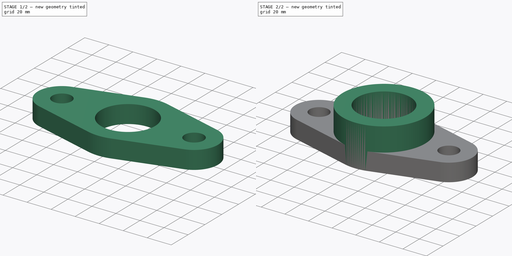
[diagram: build sequence overview — one tinted view per stage of 2, left to right]
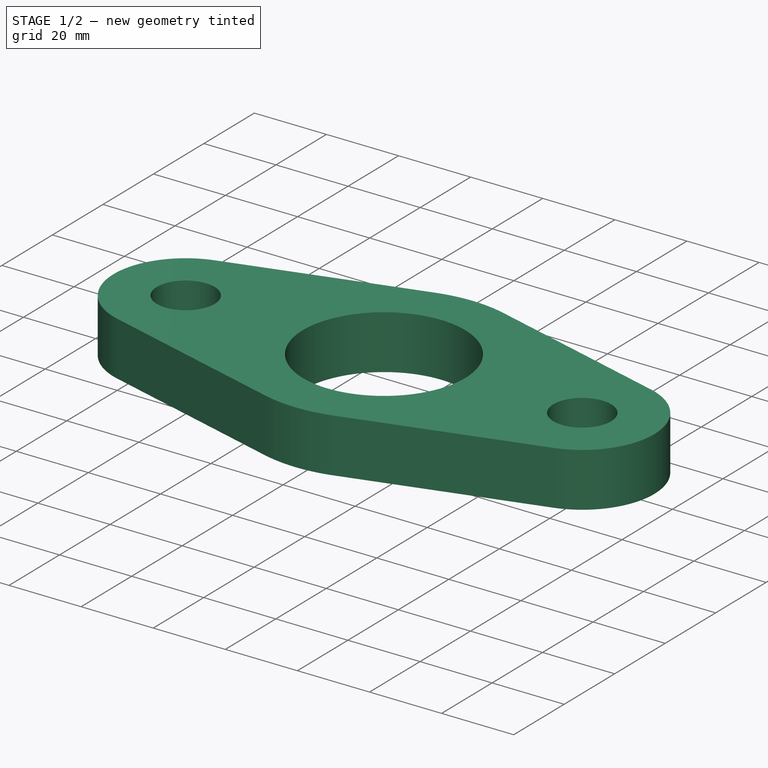
[diagram: stage 1 of 2 — iso view after this stage's code; geometry added in this stage tinted green]
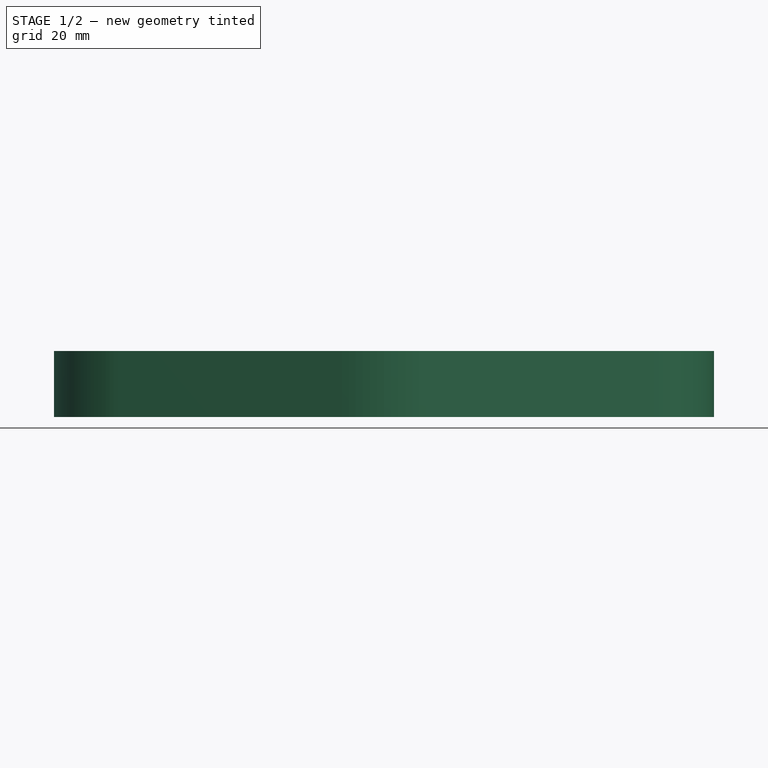
[diagram: stage 1 of 2 — front view after this stage's code; geometry added in this stage tinted green]
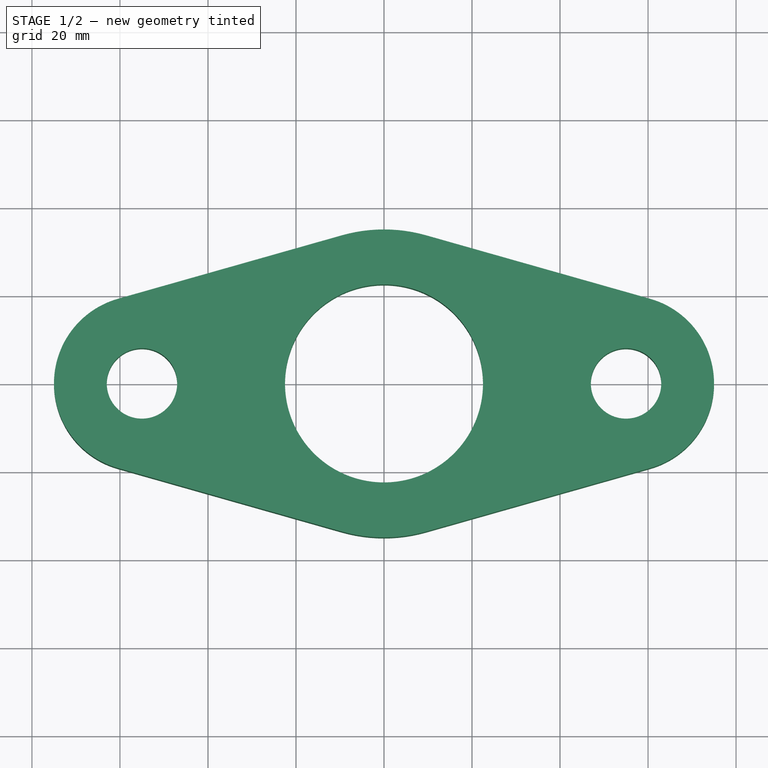
[diagram: stage 1 of 2 — top view after this stage's code; geometry added in this stage tinted green]
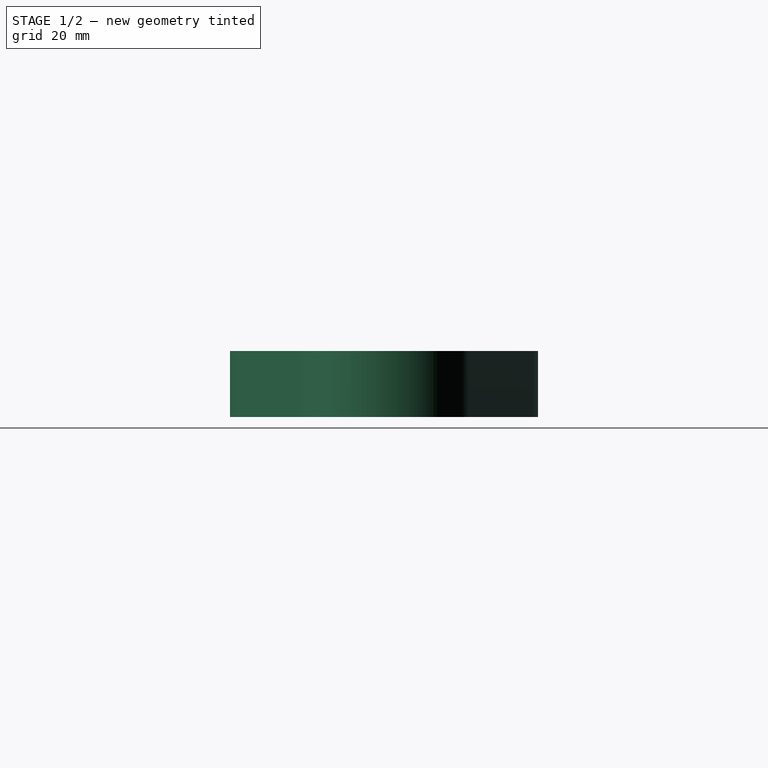
[diagram: stage 1 of 2 — right view after this stage's code; geometry added in this stage tinted green]
FCSTD DOCUMENT  (FreeCAD 0.16R)
Label: Ejer final
License: All rights reserved
LicenseURL: http://en.wikipedia.org/wiki/All_rights_reserved
objects: Sketcher::SketchObject×3, PartDesign::Pad×2
note: 7 computed .brp shape members not serialized (recipe doc carries the construction recipe); baked Part::Feature solids carry a one-line shape summary decoded from their .brp

FEATURE [Sketcher::SketchObject] Sketch
  sketch-geometry (11):
    g0: ArcOfCircle CenterX=0 CenterY=0 CenterZ=0 NormalX=0 NormalY=0 NormalZ=1 Radius=35 StartAngle=1.29457 EndAngle=1.84702
    g1: Circle CenterX=0 CenterY=0 CenterZ=0 NormalX=0 NormalY=0 NormalZ=1 Radius=22.5
    g2: Circle CenterX=-55 CenterY=0 CenterZ=0 NormalX=0 NormalY=0 NormalZ=1 Radius=8
    g3: ArcOfCircle CenterX=-55 CenterY=0 CenterZ=0 NormalX=0 NormalY=0 NormalZ=1 Radius=20 StartAngle=1.84702 EndAngle=4.43616
    g4: Circle CenterX=55 CenterY=0 CenterZ=0 NormalX=0 NormalY=0 NormalZ=1 Radius=8
    g5: ArcOfCircle CenterX=55 CenterY=0 CenterZ=0 NormalX=0 NormalY=0 NormalZ=1 Radius=20 StartAngle=4.98862 EndAngle=7.57776
    g6: LineSegment StartX=-60.4545 StartY=19.2418 StartZ=0 EndX=-9.54545 EndY=33.6732 EndZ=0
    g7: LineSegment StartX=-60.4545 StartY=-19.2418 StartZ=0 EndX=-9.54545 EndY=-33.6732 EndZ=0
    g8: LineSegment StartX=9.54546 StartY=-33.6732 StartZ=0 EndX=60.4545 EndY=-19.2418 EndZ=0
    g9: LineSegment StartX=9.54553 StartY=33.6732 StartZ=0 EndX=60.4545 EndY=19.2418 EndZ=0
    g10: ArcOfCircle CenterX=0 CenterY=0 CenterZ=0 NormalX=0 NormalY=0 NormalZ=1 Radius=35 StartAngle=4.43616 EndAngle=4.98862
  constraints (31):
    c: Coincident(g0,g-1)
    c: Coincident(g1,g-1)
    c: Radius(g0) = 35
    c: Radius(g1) = 22.5
    c: Coincident(g3,g2)
    c: Coincident(g5,g4)
    c: Radius(g2) = 8
    c: Radius(g4) = 8
    c: DistanceX(g2,g4) = 110
    c: Symmetric(g2,g4,g-2)
    c: Radius(g3) = 20
    c: Radius(g5) = 20
    c: PointOnObject(g2,g-1)
    c: Coincident(g0,g9)
    c: Coincident(g10,g8)
    c: Equal(g0,g10)
    c: Coincident(g0,g6)
    c: Coincident(g10,g7)
    c: Coincident(g0,g10)
    c: Coincident(g3,g6)
    c: Coincident(g3,g7)
    c: Coincident(g5,g8)
    c: Coincident(g5,g9)
    c: Tangent(g5,g9)
    c: Tangent(g5,g8)
    c: Tangent(g8,g10)
    c: Tangent(g10,g7)
    c: Tangent(g7,g3)
    c: Tangent(g3,g6)
    c: Tangent(g6,g0)
    c: Tangent(g0,g9)
FEATURE [PartDesign::Pad] Pad
  Length = 15
  Length2 = 100
  Sketch = -> Sketch
  Type = 0
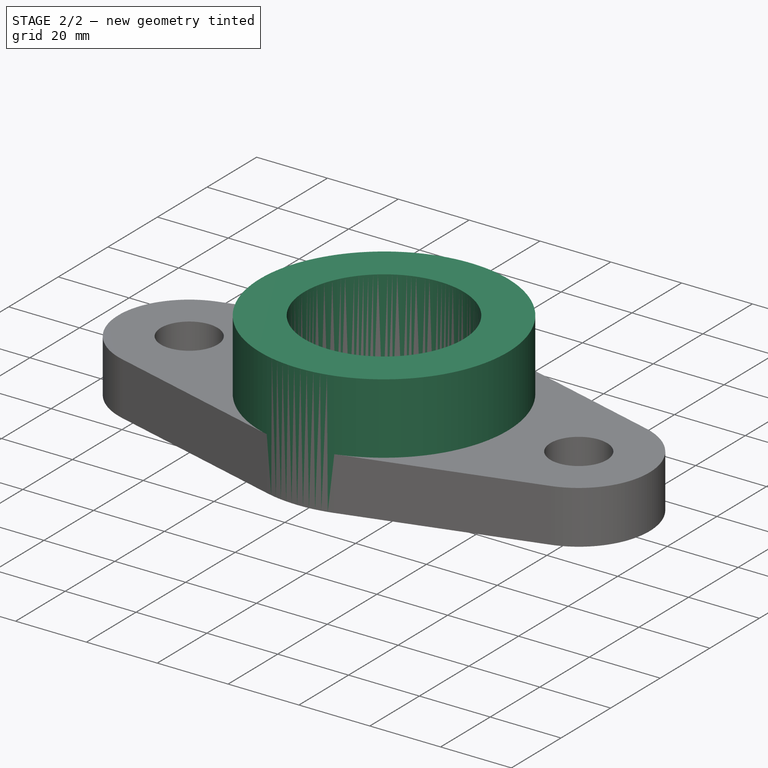
[diagram: stage 2 of 2 — iso view after this stage's code; geometry added in this stage tinted green]
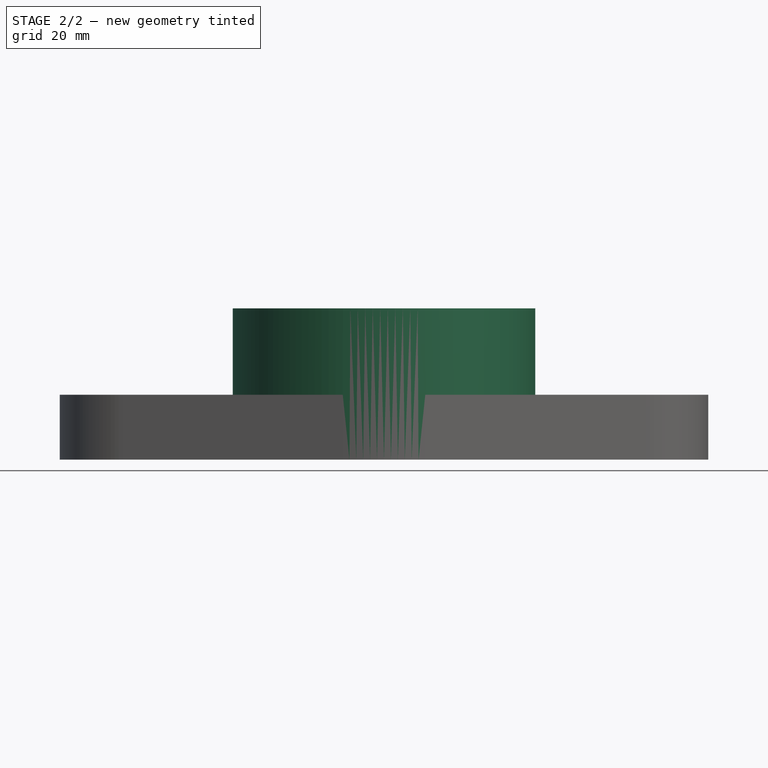
[diagram: stage 2 of 2 — front view after this stage's code; geometry added in this stage tinted green]
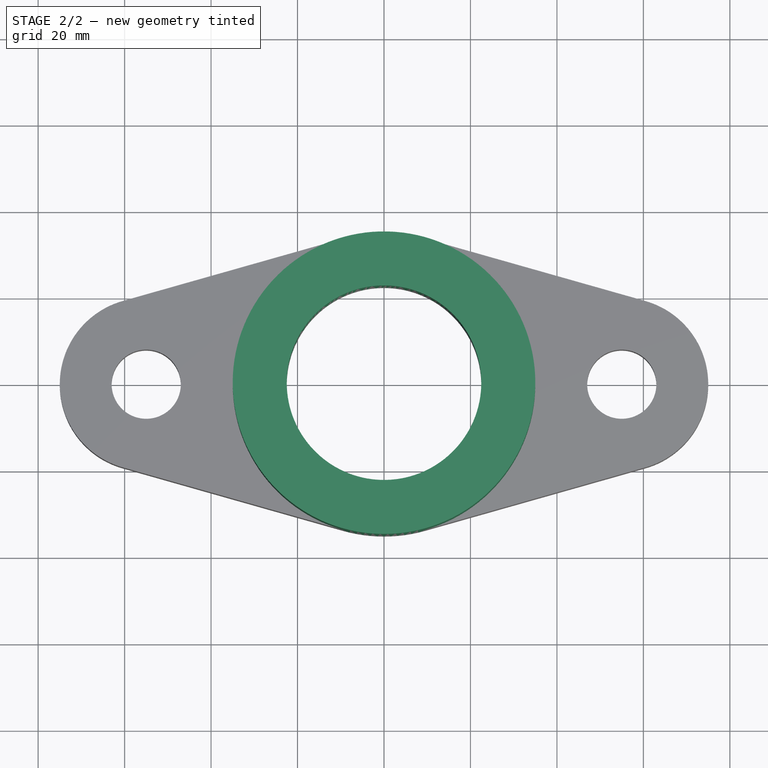
[diagram: stage 2 of 2 — top view after this stage's code; geometry added in this stage tinted green]
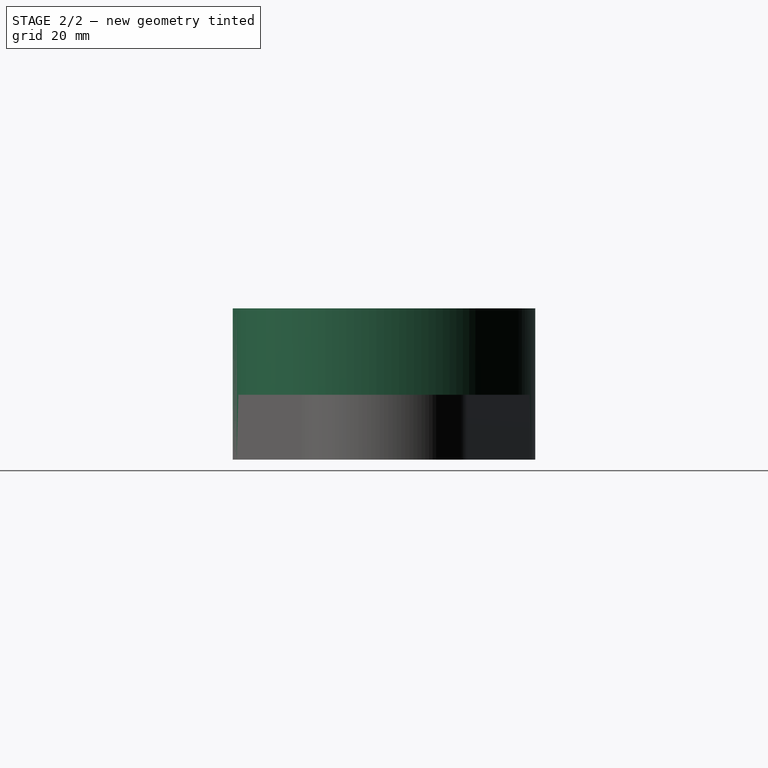
[diagram: stage 2 of 2 — right view after this stage's code; geometry added in this stage tinted green]
FEATURE [Sketcher::SketchObject] Sketch001
  ExternalGeometry = -> [Pad]
  Placement = pos=(0,0,15) rot=(0,0,1;0rad)
  Support = -> Pad [Face13]
FEATURE [Sketcher::SketchObject] Sketch002
  Placement = pos=(0,0,15) rot=(0,0,1;0rad)
  Support = -> Pad [Face13]
  sketch-geometry (2):
    g0: Circle CenterX=0 CenterY=0 CenterZ=0 NormalX=0 NormalY=0 NormalZ=1 Radius=22.5
    g1: Circle CenterX=0 CenterY=0 CenterZ=0 NormalX=0 NormalY=0 NormalZ=1 Radius=35
  constraints (4):
    c: Coincident(g0,g-1)
    c: Coincident(g1,g-1)
    c: Radius(g0) = 22.5
    c: Radius(g1) = 35
FEATURE [PartDesign::Pad] Pad001
  Length = 20
  Length2 = 100
  Sketch = -> Sketch002
  Type = 0
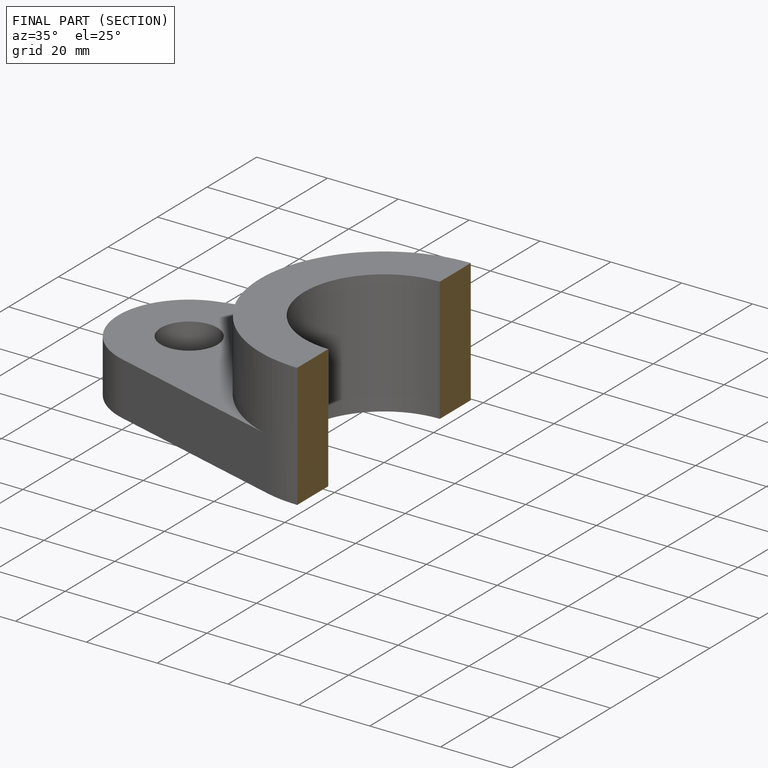
[diagram: finished part — half-section view (interior)]
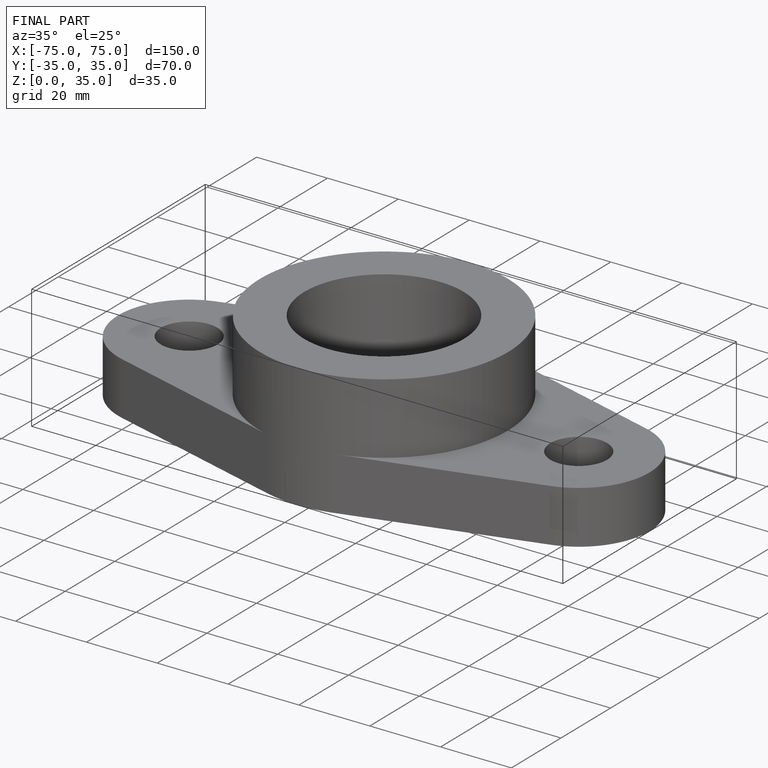
[diagram: finished part — iso view with bounding-box wireframe]
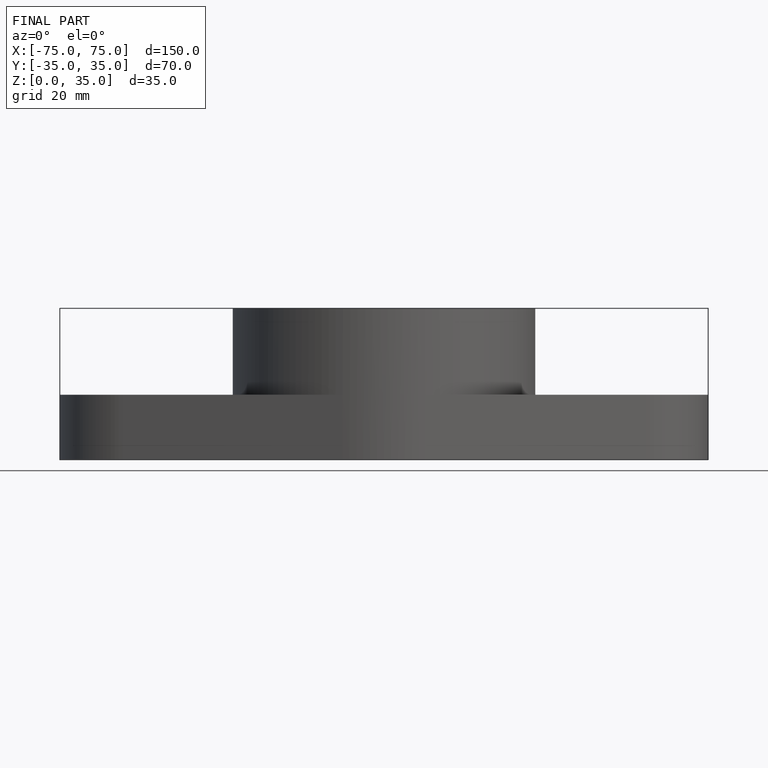
[diagram: finished part — front view with bounding-box wireframe]
